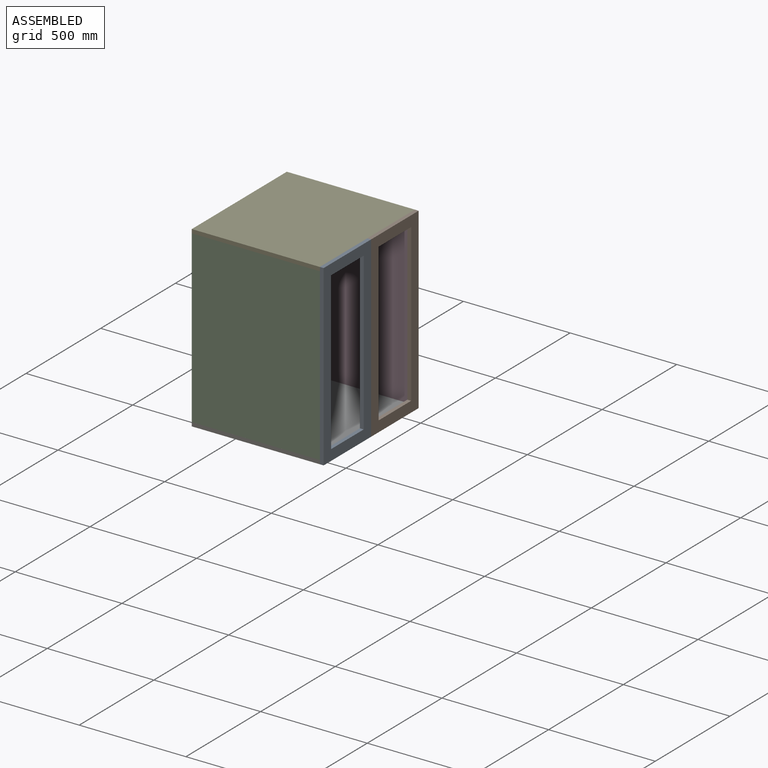
[diagram: assembled view]
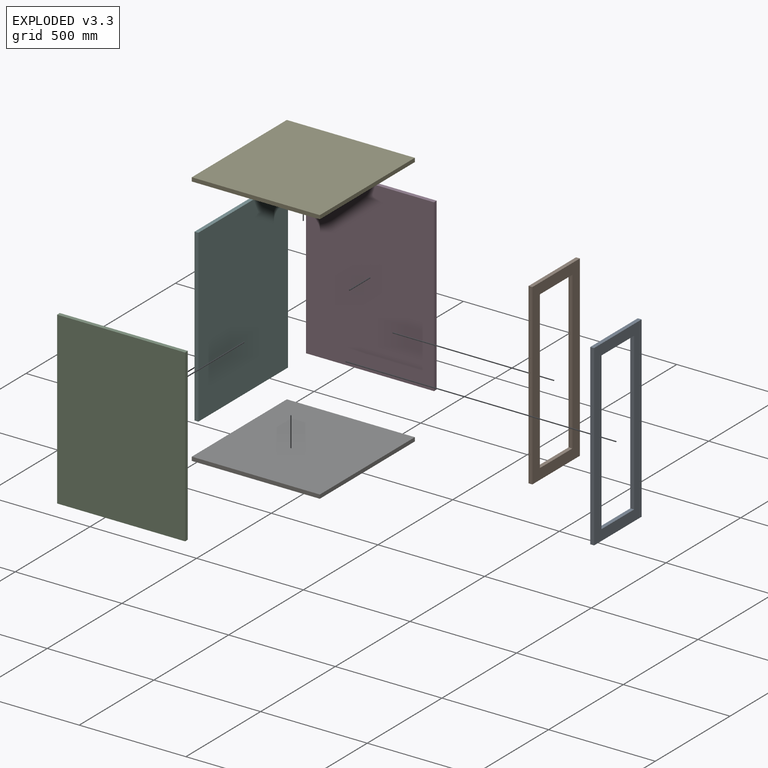
[diagram: exploded view]
GUIDED TOUR — FREECAD ASSEMBLY "enclosure for 3d printer"

This assembly has 7 components, labeled P0..P6 below (a component is one placed body or linked part; the same part can appear more than once), held together by 6 modeled joints. A joint is a constraint between two components; its type names the relative motion it leaves free:
  FASTENED — locks the two components together rigidly (no relative motion).
Axis/direction vectors are unit vectors and 'through' points are millimeter coordinates, both in the assembly's world frame.

MATES
  1. FASTENED [Fixed] "Fixed": P3 <-> P5, direction (0.000, 1.000, 0.000) through (0.00, 300.00, 400.00) mm
  2. FASTENED [Fixed] "Fixed001": P5 <-> P2, direction (0.000, 1.000, 0.000) through (0.00, -300.00, 400.00) mm
  3. FASTENED [Fixed] "Fixed002": P6 <-> P2, direction (0.000, 0.000, 1.000) through (600.00, -318.00, -400.00) mm
  4. FASTENED [Fixed] "Fixed003": P4 <-> P2, direction (0.000, 0.000, 1.000) through (600.00, -318.00, 400.00) mm
  5. FASTENED [Fixed] "Fixed004": P1 <-> P6, direction (1.000, 0.000, 0.000) through (600.00, 318.00, -418.00) mm
  6. FASTENED [Fixed] "Fixed005": P6 <-> P0, direction (-1.000, 0.000, 0.000) through (600.00, -318.00, -418.00) mm

ASSEMBLY ORDER
  1. P5 — the base component [order verified]
  2. P3 [order verified]
  3. P2 [order verified]
  4. P6 [order verified]
  5. P4 [order verified]
  6. P1 [order verified]
  7. P0 [order verified]
(P0 verified with a relaxed clearance tolerance: the source model stores slight part interference there.)
Order-tag legend:
  [order verified] — this step's position reverses a verified removal order: the component was checked to insert without passing through the ones already placed.

Of the 7 components, 7 carry a construction recipe — the FreeCAD feature program (sketches with constraints, then the solid features that consume them) that regenerates the part from scratch, quoted from this document or from the linked companion document it references; the rest are supplied as boundary geometry only. The tour below walks the components in assembly order: each is shown spotlighted twice — in the assembled view, then in the exploded view, where a leader line traces a displaced component back to its assembled socket (components that stay in place when exploded have no leader line; saturated green if recipe-attached, orange if geometry-only; every other component desaturated gray) — followed by its recipe or geometry summary and the mates that hold it.
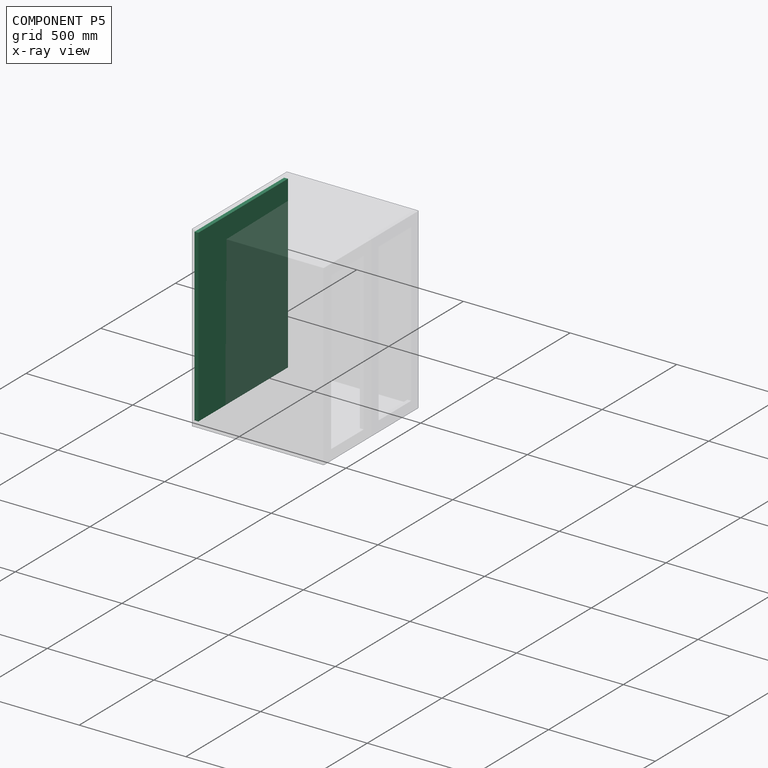
[diagram: component P5 — x-ray view]
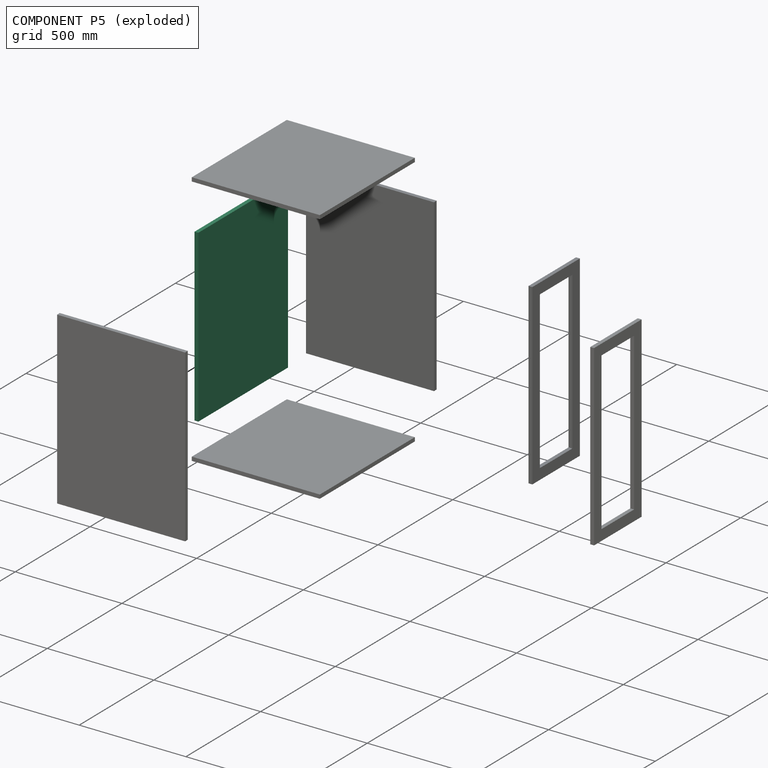
[diagram: component P5 — exploded]
COMPONENT P5 — same part as P2; its construction recipe is shown at P2.
Held by: FASTENED mate "Fixed" to P3; FASTENED mate "Fixed001" to P2.
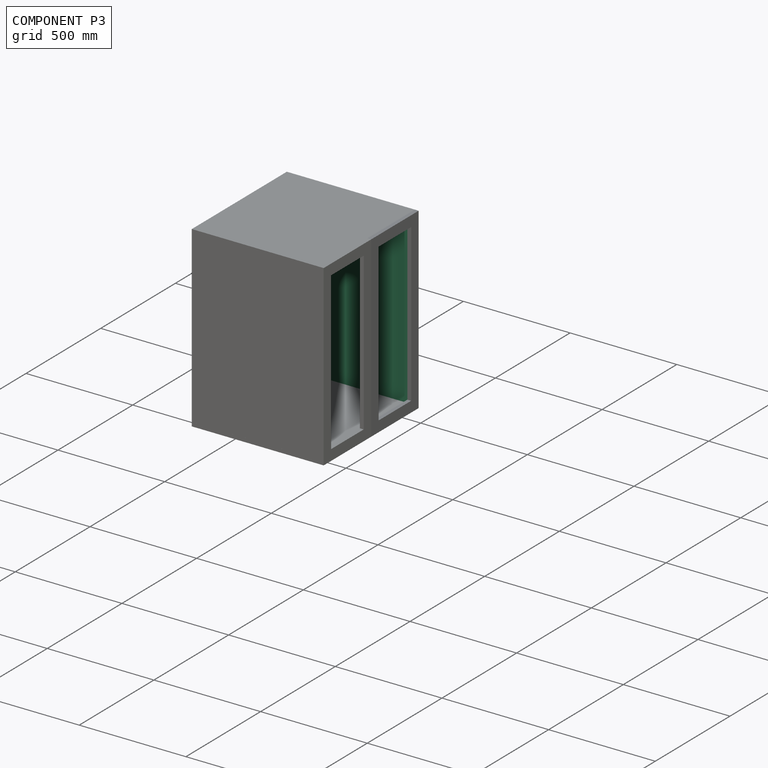
[diagram: component P3 — assembled]
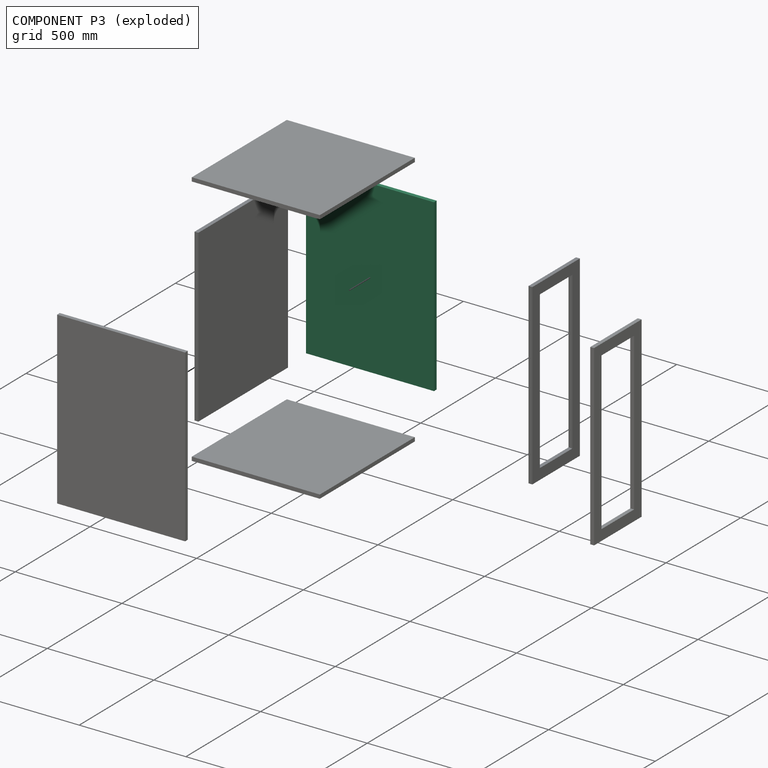
[diagram: component P3 — exploded]
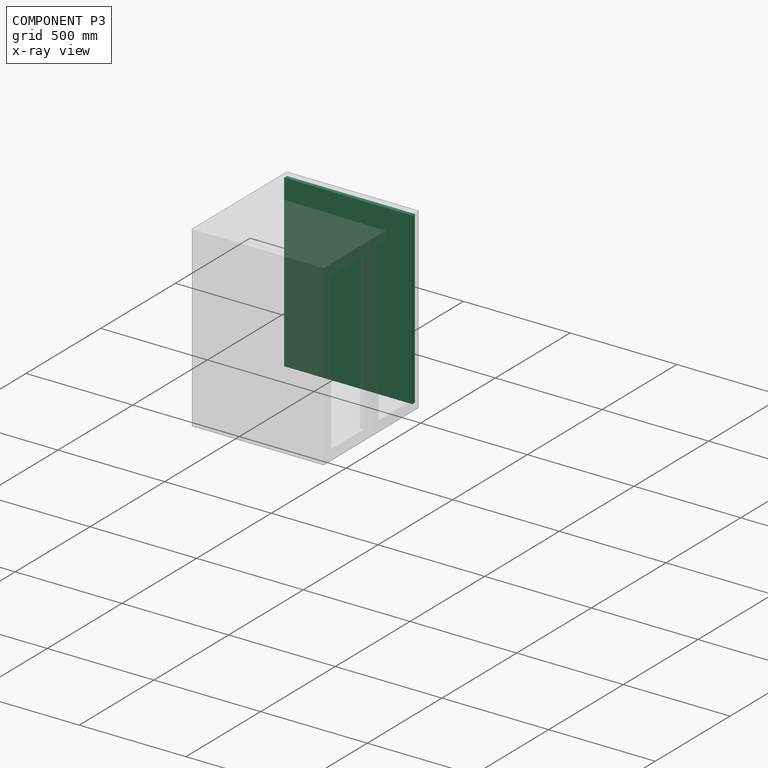
[diagram: component P3 — x-ray view]
COMPONENT P3 — same part as P2; its construction recipe is shown at P2.
Held by: FASTENED mate "Fixed" to P5.
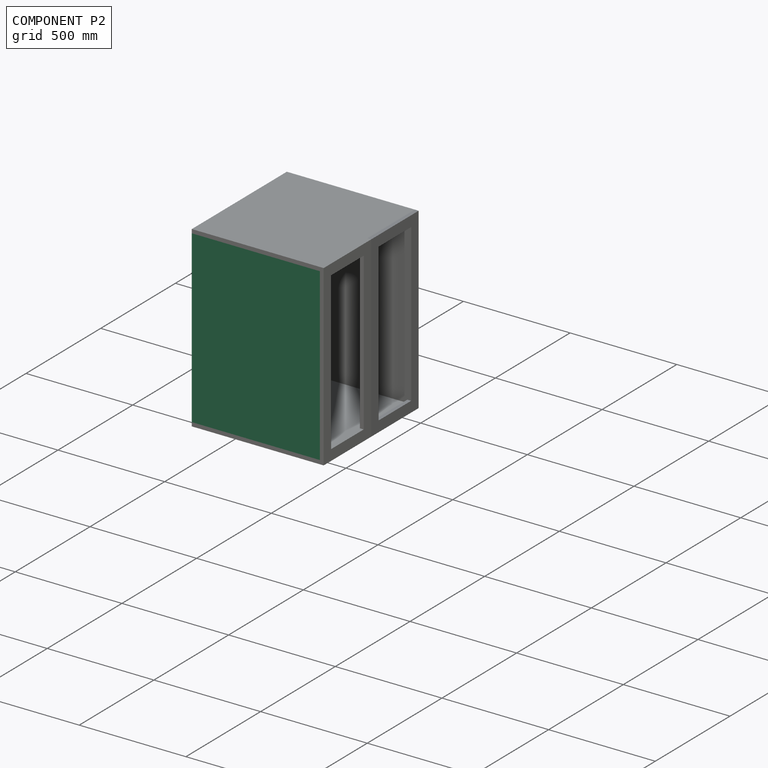
[diagram: component P2 — assembled]
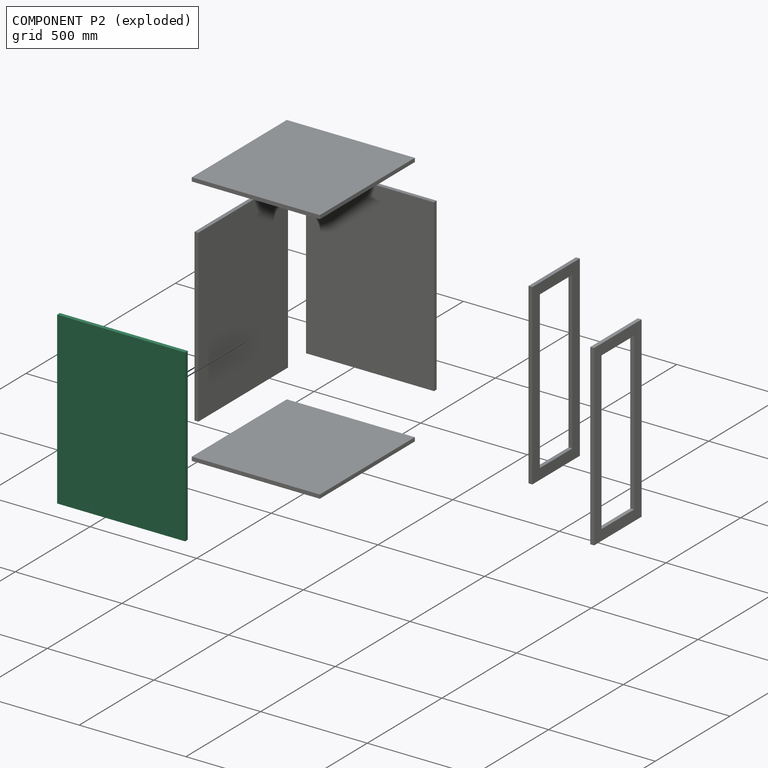
[diagram: component P2 — exploded]
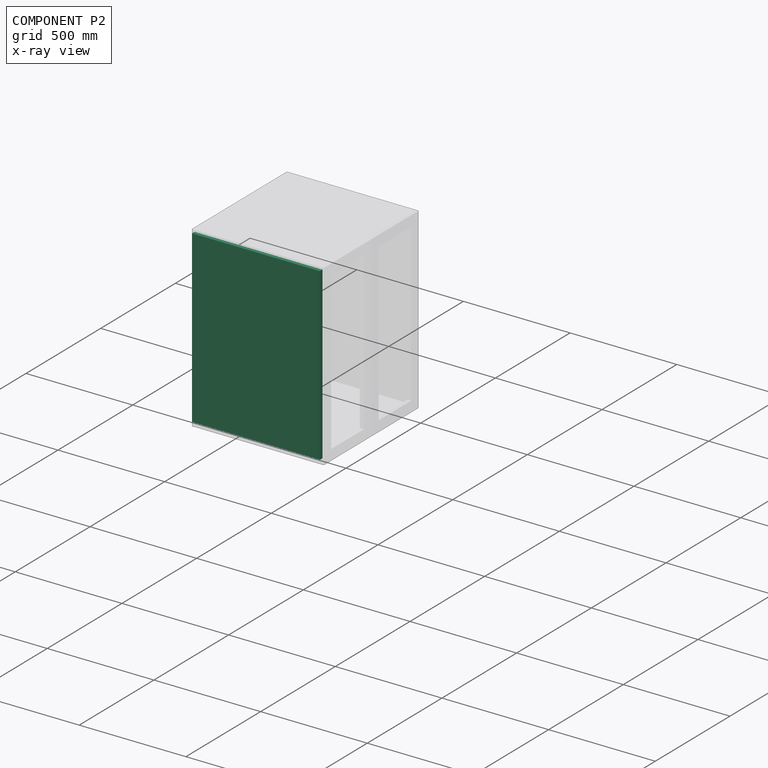
[diagram: component P2 — x-ray view]
COMPONENT P2 — recipe-attached ("T002", modeled in this document).
Held by: FASTENED mate "Fixed001" to P5; FASTENED mate "Fixed002" to P6; FASTENED mate "Fixed003" to P4.
Construction recipe (the document's own serialized feature program — sketch geometry with constraints, then the solid features built on it; lengths are millimeters unless a unit is written):

FEATURE [Sketcher::SketchObject] Sketch
  ArcFitTolerance = 1e-06
  AttachmentSupport = -> [YZ_Plane]
  FullyConstrained = true
  MakeInternals = false
  MapMode = 5
  Placement = pos=(0,0,0) rot=(0.57735,0.57735,0.57735;2.0944rad)
  sketch-geometry (4):
    g0: LineSegment StartX=-300 StartY=400 StartZ=0 EndX=-300 EndY=-400 EndZ=0
    g1: LineSegment StartX=-300 StartY=-400 StartZ=0 EndX=300 EndY=-400 EndZ=0
    g2: LineSegment StartX=300 StartY=-400 StartZ=0 EndX=300 EndY=400 EndZ=0
    g3: LineSegment StartX=300 StartY=400 StartZ=0 EndX=-300 EndY=400 EndZ=0
  constraints (10):
    c: Coincident(g0,g1)
    c: Coincident(g1,g2)
    c: Coincident(g2,g3)
    c: Coincident(g3,g0)
    c: Vertical(g2)
    c: Horizontal(g1)
    c: Symmetric(g2,g0,g-2)
    c: Symmetric(g0,g0,g-1)
    c: DistanceX(g3,g3) = 600
    c: DistanceY(g2,g2) = 800
FEATURE [PartDesign::Pad] Pad
  Direction = (1,0,0)
  Length = 18
  Length2 = 10
  Placement = pos=(0,0,0) rot=(1,1,1;2.0944rad)
  Profile = -> Sketch
  ReferenceAxis = -> Sketch [N_Axis]
  Refine = true
  Suppressed = false
  Type = 0
FEATURE [PartDesign::Body] Body  label="T1"
  AllowCompound = false
  Group = -> [Sketch,Pad]
  Origin = -> Origin
  Tip = -> Pad
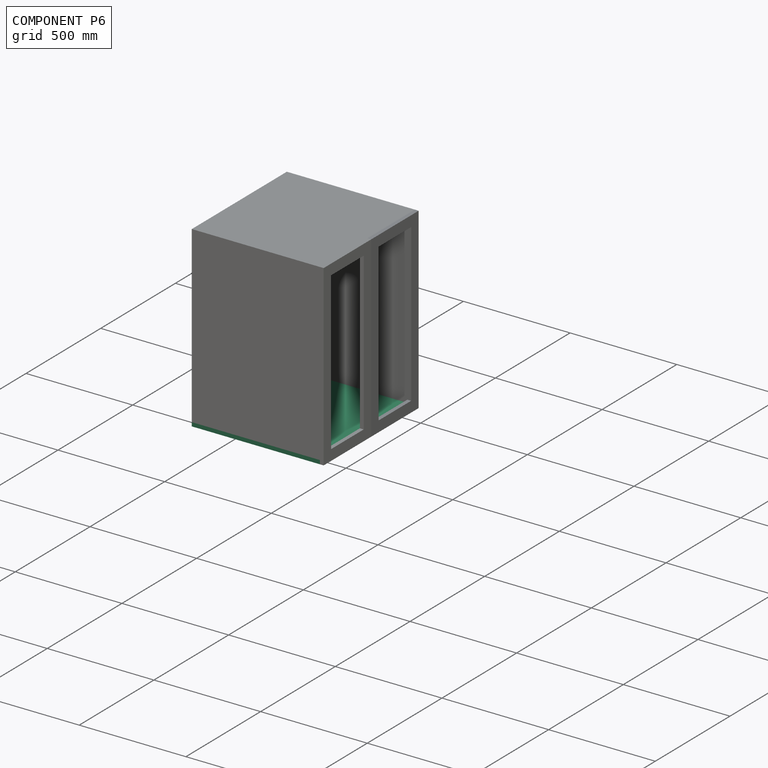
[diagram: component P6 — assembled]
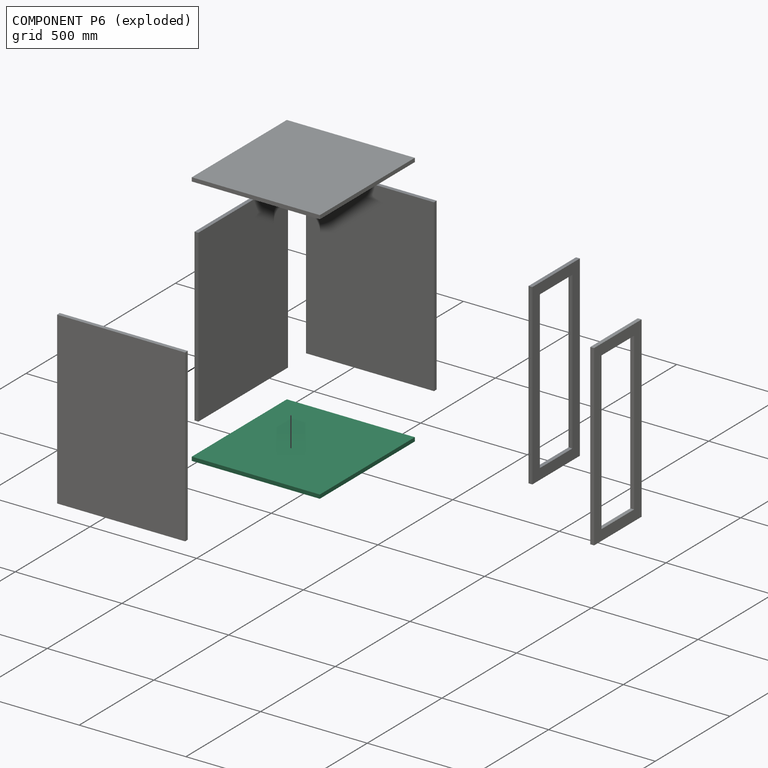
[diagram: component P6 — exploded]
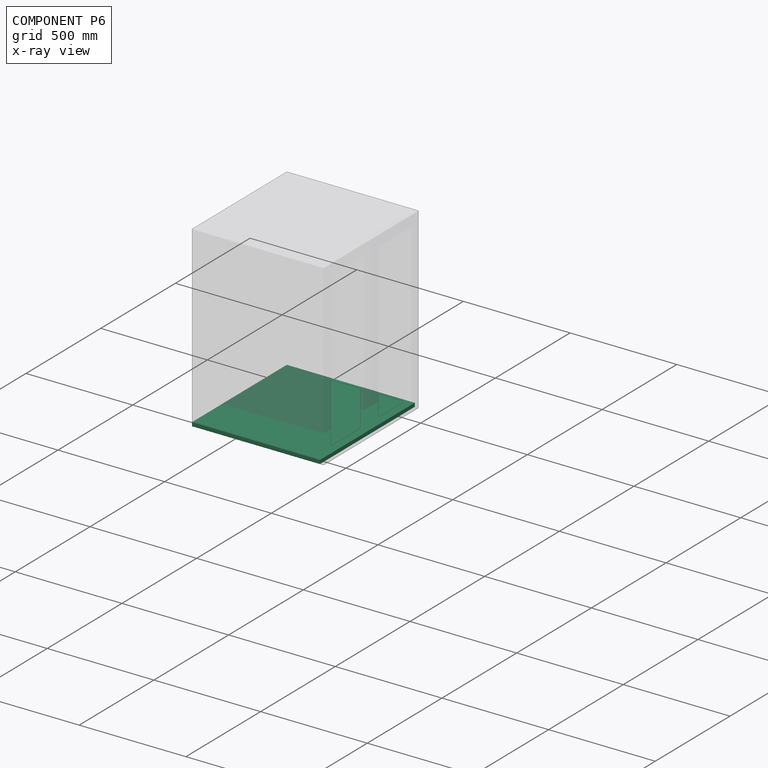
[diagram: component P6 — x-ray view]
COMPONENT P6 — same part as P4; its construction recipe is shown at P4.
Held by: FASTENED mate "Fixed002" to P2; FASTENED mate "Fixed004" to P1; FASTENED mate "Fixed005" to P0.
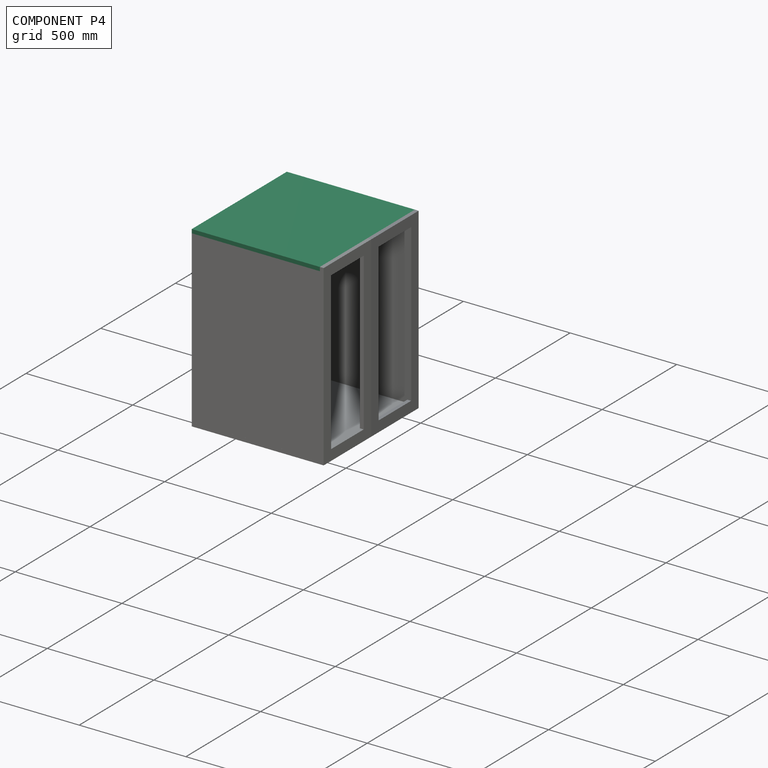
[diagram: component P4 — assembled]
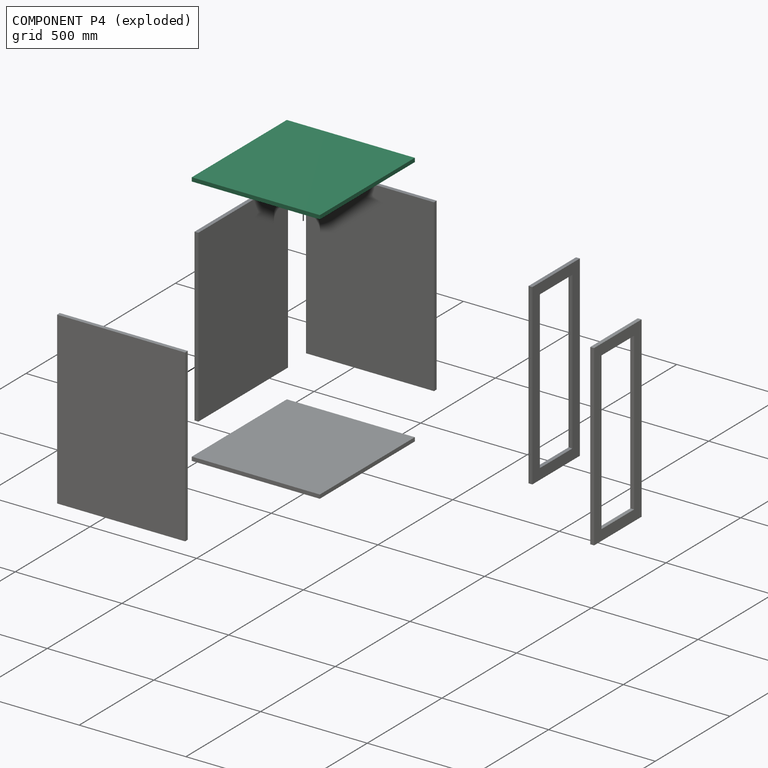
[diagram: component P4 — exploded]
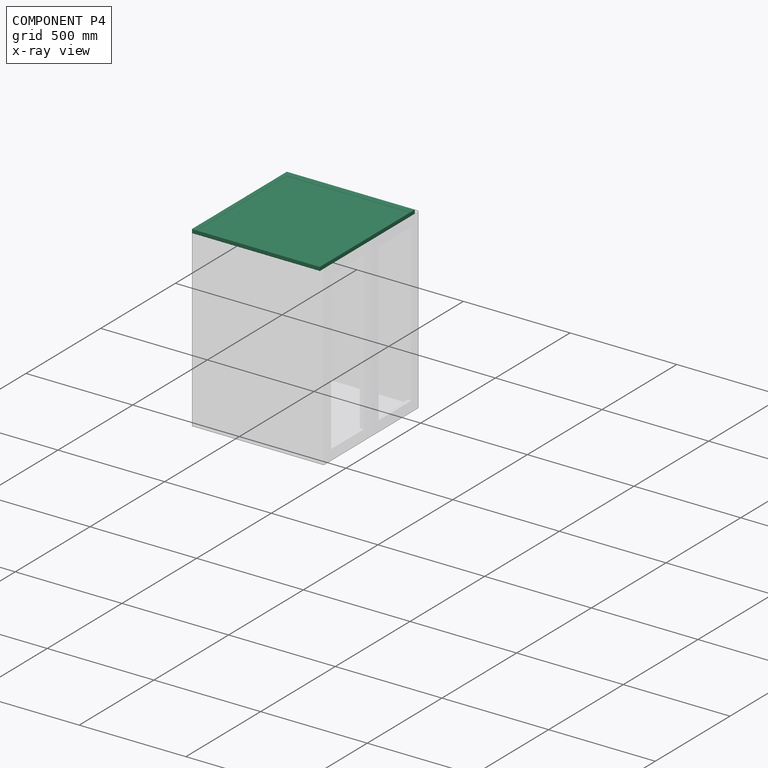
[diagram: component P4 — x-ray view]
COMPONENT P4 — recipe-attached ("T006", modeled in this document).
Held by: FASTENED mate "Fixed003" to P2.
Construction recipe (the document's own serialized feature program — sketch geometry with constraints, then the solid features built on it; lengths are millimeters unless a unit is written):

FEATURE [Sketcher::SketchObject] Sketch001
  ArcFitTolerance = 1e-06
  AttachmentSupport = -> [XY_Plane001]
  FullyConstrained = false
  MakeInternals = false
  MapMode = 5
  sketch-geometry (4):
    g0: LineSegment StartX=-318 StartY=257.793 StartZ=0 EndX=-318 EndY=-342.207 EndZ=0
    g1: LineSegment StartX=-318 StartY=-342.207 StartZ=0 EndX=318 EndY=-342.207 EndZ=0
    g2: LineSegment StartX=318 StartY=-342.207 StartZ=0 EndX=318 EndY=257.793 EndZ=0
    g3: LineSegment StartX=318 StartY=257.793 StartZ=0 EndX=-318 EndY=257.793 EndZ=0
  constraints (9):
    c: Coincident(g0,g1)
    c: Coincident(g1,g2)
    c: Coincident(g2,g3)
    c: Coincident(g3,g0)
    c: Vertical(g0)
    c: Symmetric(g0,g2,g-2)
    c: Symmetric(g0,g1,g-2)
    c: DistanceX(g3,g3) = 636
    c: DistanceY(g2,g2) = 600
FEATURE [PartDesign::Pad] Pad001
  Direction = (0,0,1)
  Length = 18
  Length2 = 10
  Profile = -> Sketch001
  ReferenceAxis = -> Sketch001 [N_Axis]
  Refine = true
  Suppressed = false
  Type = 0
FEATURE [PartDesign::Body] Body001  label="T2"
  AllowCompound = false
  Group = -> [Sketch001,Pad001]
  Origin = -> Origin001
  Tip = -> Pad001
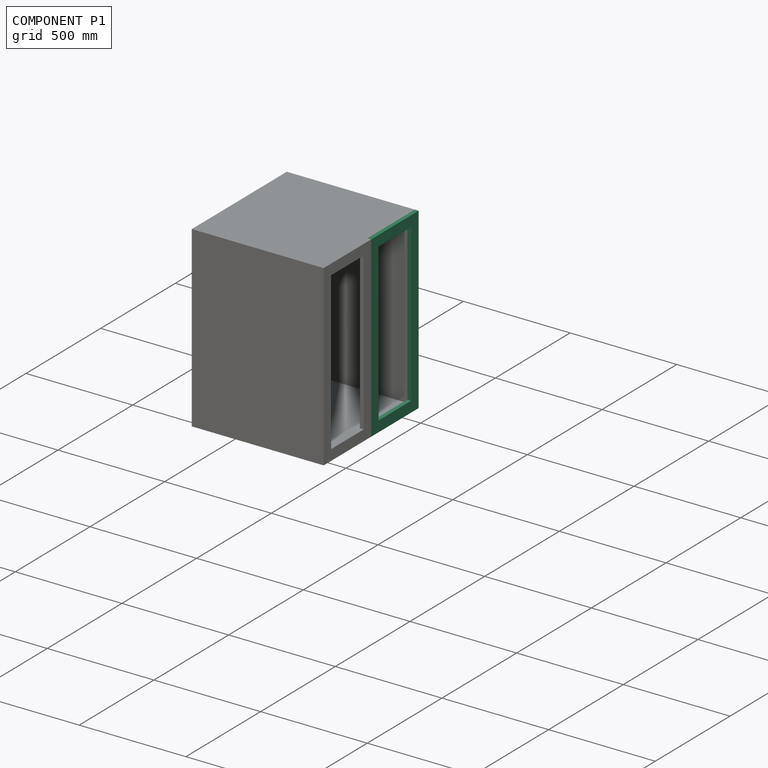
[diagram: component P1 — assembled]
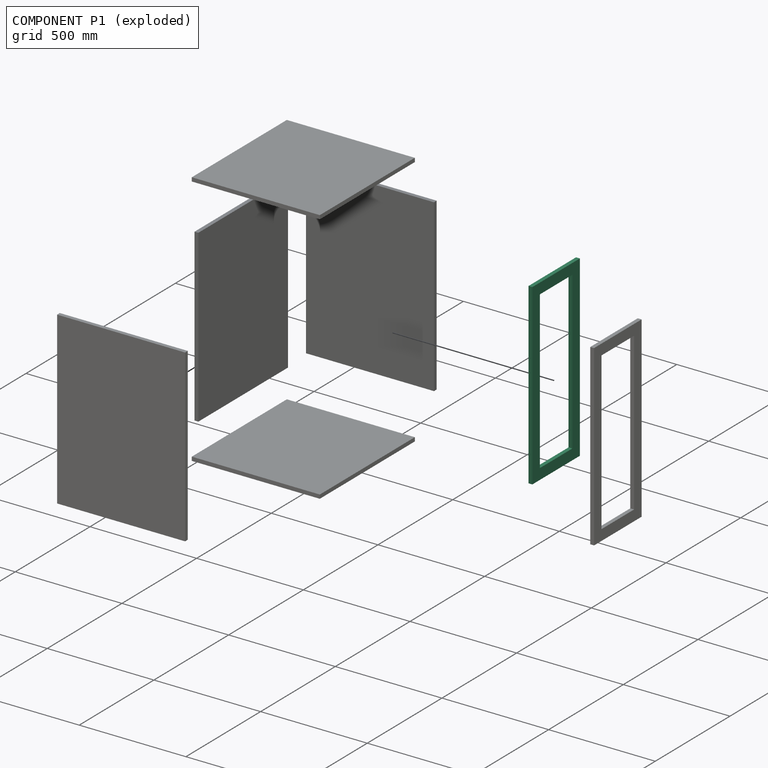
[diagram: component P1 — exploded]
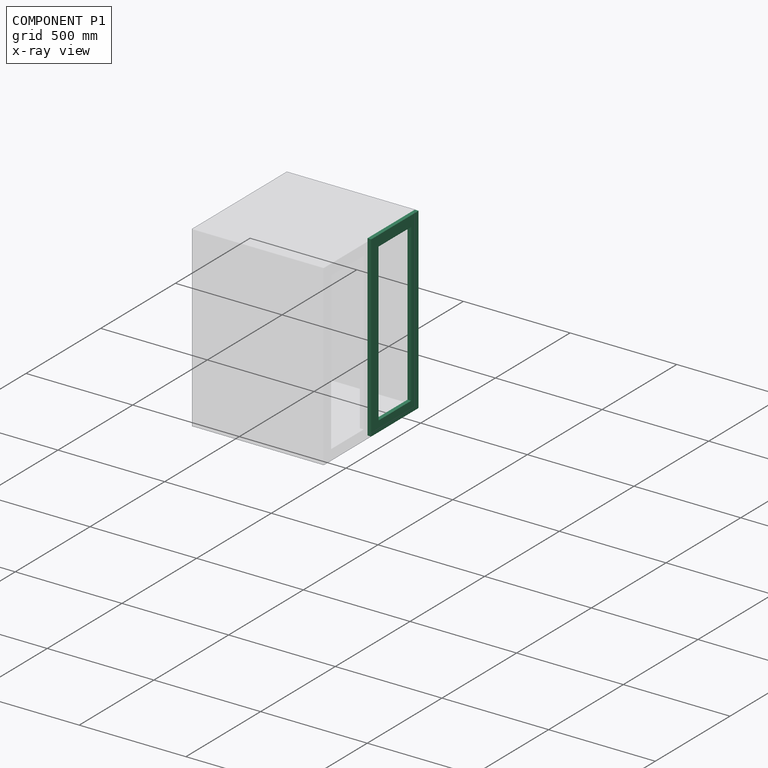
[diagram: component P1 — x-ray view]
COMPONENT P1 — same part as P0; its construction recipe is shown at P0.
Held by: FASTENED mate "Fixed004" to P6.
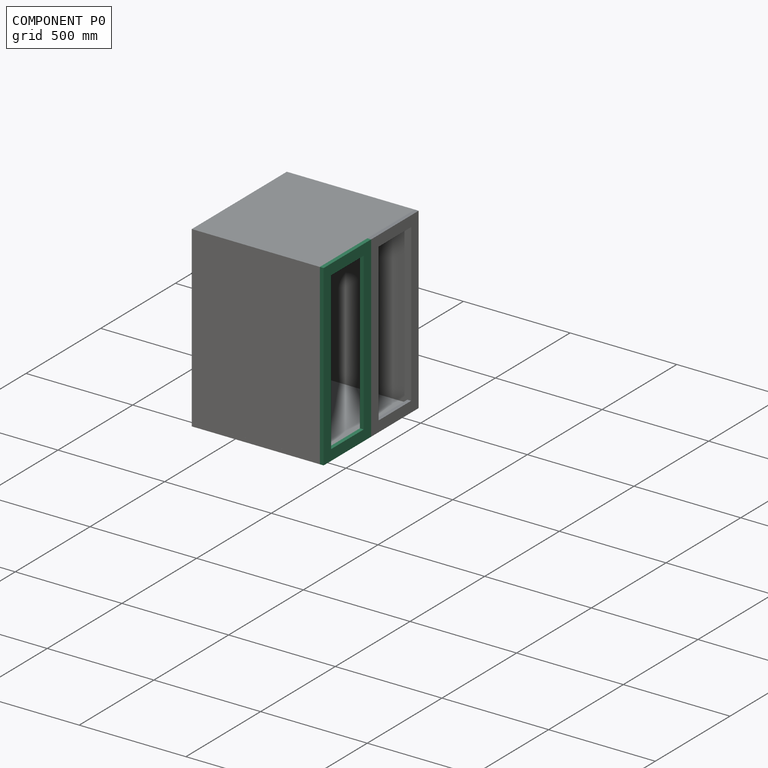
[diagram: component P0 — assembled]
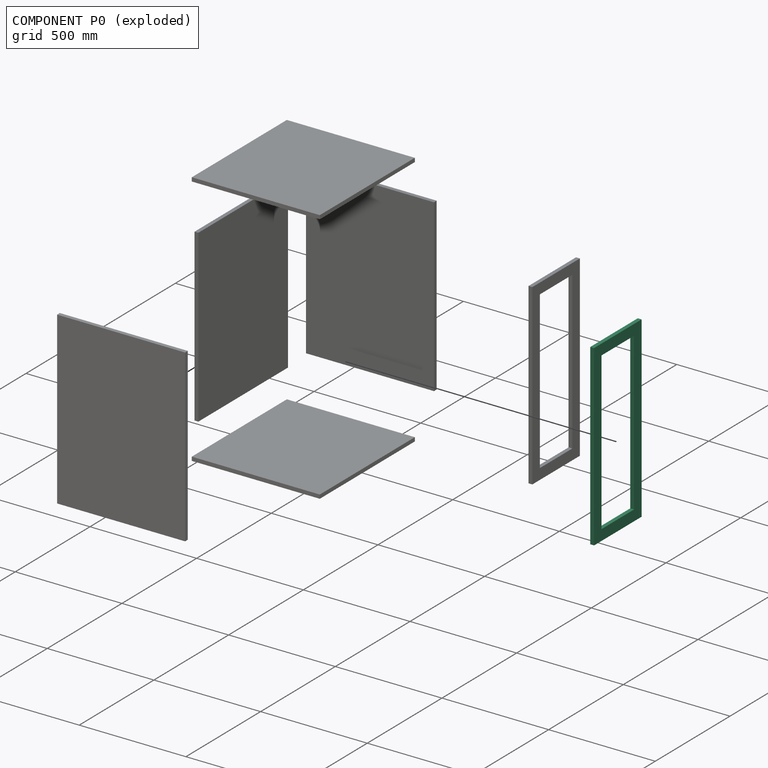
[diagram: component P0 — exploded]
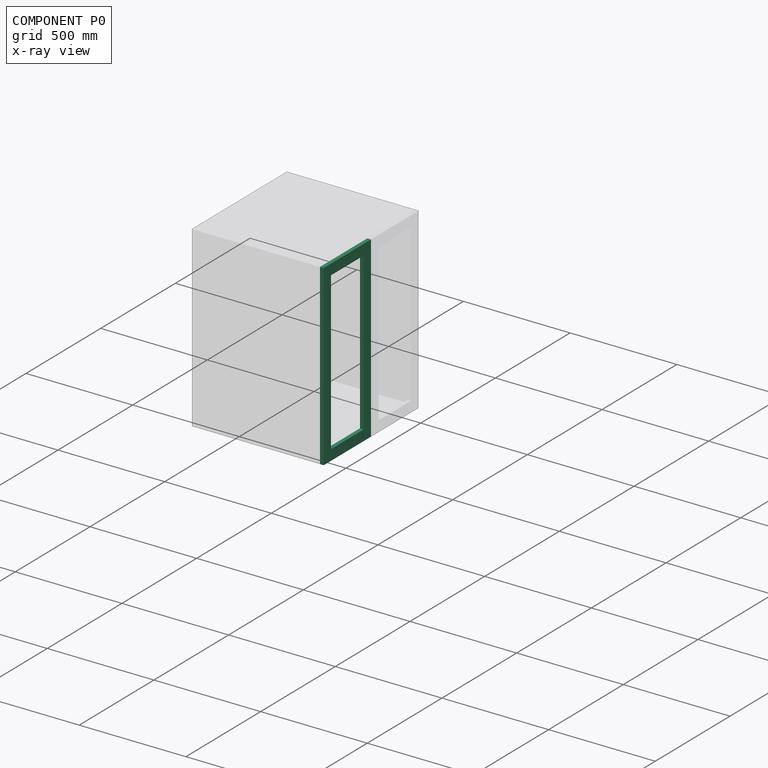
[diagram: component P0 — x-ray view]
COMPONENT P0 — recipe-attached ("M003", modeled in this document).
Held by: FASTENED mate "Fixed005" to P6.
Construction recipe (the document's own serialized feature program — sketch geometry with constraints, then the solid features built on it; lengths are millimeters unless a unit is written):

FEATURE [Sketcher::SketchObject] Sketch002
  ArcFitTolerance = 1e-06
  AttachmentSupport = -> [XZ_Plane002]
  FullyConstrained = true
  MakeInternals = false
  MapMode = 5
  Placement = pos=(0,0,0) rot=(1,0,0;1.5708rad)
  expr: Constraints[16] = 636 / 2
  sketch-geometry (8):
    g0: LineSegment StartX=-159 StartY=418 StartZ=0 EndX=-159 EndY=-418 EndZ=0
    g1: LineSegment StartX=-159 StartY=-418 StartZ=0 EndX=159 EndY=-418 EndZ=0
    g2: LineSegment StartX=159 StartY=-418 StartZ=0 EndX=159 EndY=418 EndZ=0
    g3: LineSegment StartX=159 StartY=418 StartZ=0 EndX=-159 EndY=418 EndZ=0
    g4: LineSegment StartX=-109 StartY=368 StartZ=0 EndX=-109 EndY=-368 EndZ=0
    g5: LineSegment StartX=-109 StartY=-368 StartZ=0 EndX=109 EndY=-368 EndZ=0
    g6: LineSegment StartX=109 StartY=-368 StartZ=0 EndX=109 EndY=368 EndZ=0
    g7: LineSegment StartX=109 StartY=368 StartZ=0 EndX=-109 EndY=368 EndZ=0
  constraints (20):
    c: Coincident(g0,g1)
    c: Coincident(g1,g2)
    c: Coincident(g2,g3)
    c: Coincident(g3,g0)
    c: Vertical(g2)
    c: Horizontal(g1)
    c: Coincident(g4,g5)
    c: Coincident(g5,g6)
    c: Coincident(g6,g7)
    c: Coincident(g7,g4)
    c: Vertical(g6)
    c: Horizontal(g5)
    c: Symmetric(g2,g0,g-2)
    c: Symmetric(g0,g0,g-1)
    c: Symmetric(g4,g6,g-2)
    c: Symmetric(g4,g4,g-1)
    c: DistanceX(g3,g3) = 318
    c: DistanceY(g2,g2) = 836
    c: Distance(g0,g4) = 50
    c: Distance(g3,g7) = 50
FEATURE [PartDesign::Pad] Pad002
  Direction = (0,-1,2e-16)
  Length = 18
  Length2 = 10
  Placement = pos=(0,0,0) rot=(1,0,0;1.5708rad)
  Profile = -> Sketch002
  ReferenceAxis = -> Sketch002 [N_Axis]
  Refine = true
  Suppressed = false
  Type = 0
FEATURE [PartDesign::Body] Body002  label="M1"
  AllowCompound = false
  Group = -> [Sketch002,Pad002]
  Origin = -> Origin002
  Tip = -> Pad002
PROVENANCE & LICENSES
Assembly and component geometry: a FreeCAD (.FCStd) document from a public repository crawl; components, placements and joints were extracted with FreeCAD and each solid tessellated.
Construction recipes: the document's own serialized feature recipes (and, for linked parts, the recipes of companion documents from the same project).
License: as declared in the source repository (recorded in the dataset sidecar).
Joints: native FreeCAD joints and A2plus constraints are mapped to standard mate types.
Verification: 7 of this assembly's 7 components carry a construction recipe (7 from this document itself); the rest are geometry-only. Every component's tessellation passed the extraction mesh gates (mesh-volume checksum against the B-rep where available, bounding-box inflation <= 2%).
Renders: orthographic iso camera (az 35 / el 25); the floor grid conveys scale (grid pitch printed in each image; no ruler). In the exploded view each component is displaced by its stored offset vector: the offsets alone carry the explosion direction (mate normal/axis signs are not orientation cues and do not encode it), and separation distances are assigned per mate-chain, not proportionally to assembly-order depth.
